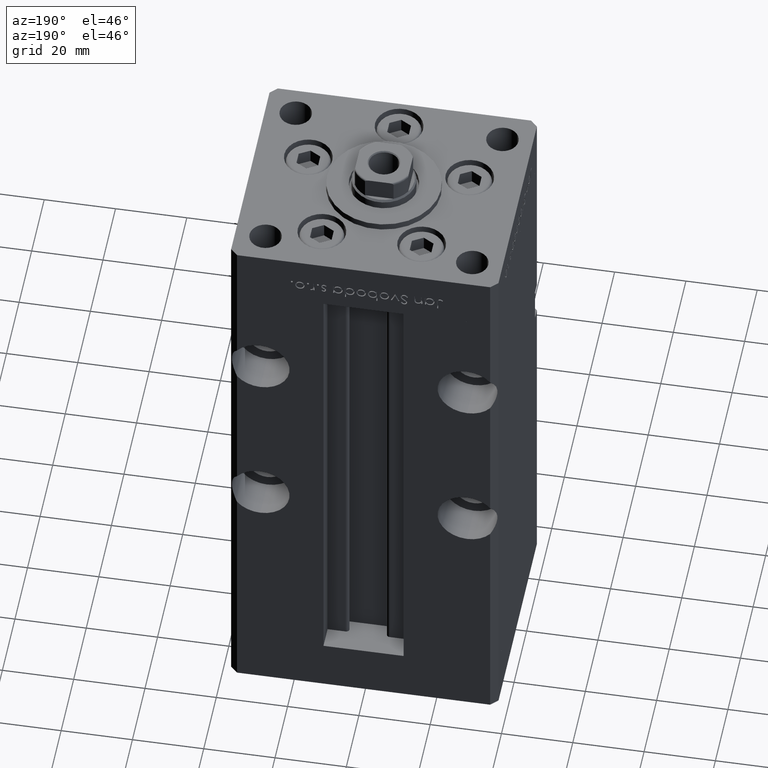
[diagram: clean part render]
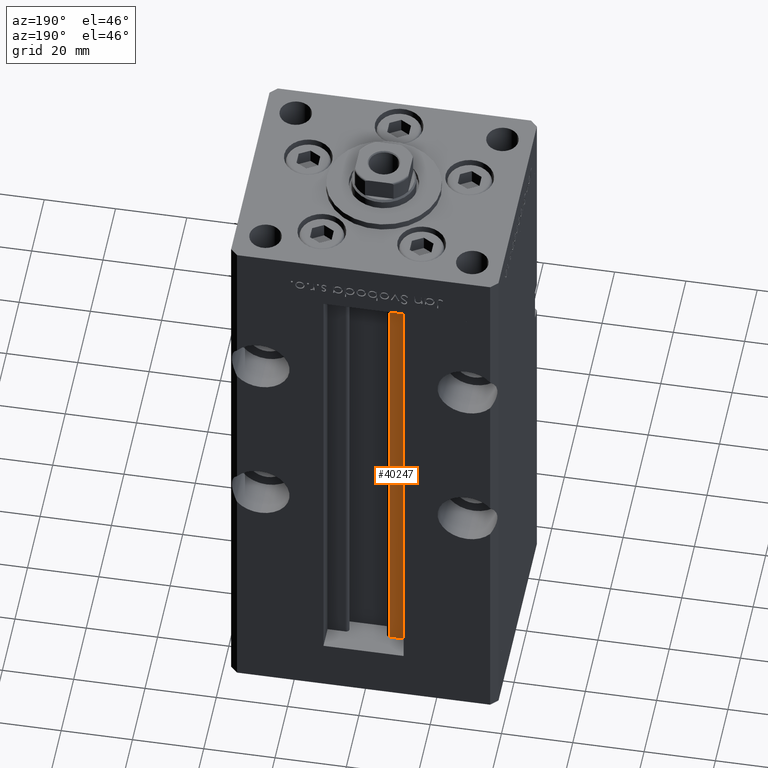
[diagram: same view with one face highlighted and labeled with its STEP entity id]
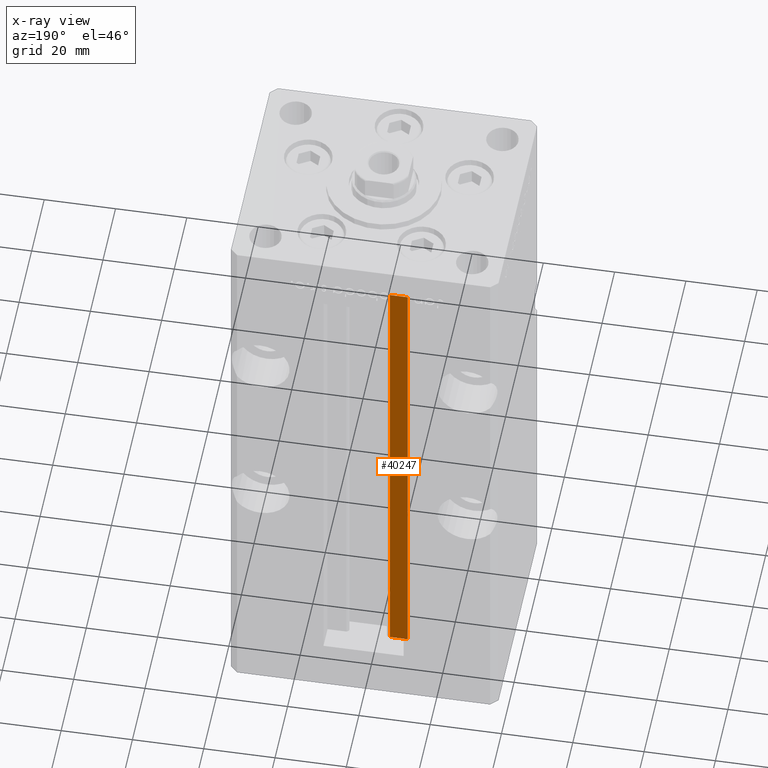
[diagram: x-ray of the same camera — body ghosted, the highlighted face saturated]
A machine part, auxiliary view. The second image highlights one B-rep face of the part: STEP entity #40247.
The next image is the same camera in x-ray: the body ghosted, the highlighted face saturated — about 0% of this face is hidden behind the body in this view.
In plain terms, the highlighted planar face has unit normal (0, -1, 0).
Its self-contained STEP definition (entity closure, byte-faithful):
#383 = DIRECTION ( 'NONE',  ( -1.000000000000000000, 0.000000000000000000, 0.000000000000000000 ) ) ;
#2689 = ORIENTED_EDGE ( 'NONE', *, *, #3500, .F. ) ;
#3500 = EDGE_CURVE ( 'NONE', #34738, #8712, #48272, .T. ) ;
#4570 = VECTOR ( 'NONE', #26720, 1000.000000000000000 ) ;
#4840 = EDGE_LOOP ( 'NONE', ( #2689, #41404, #18298, #24057 ) ) ;
#8712 = VERTEX_POINT ( 'NONE', #40013 ) ;
#10161 = DIRECTION ( 'NONE',  ( -0.000000000000000000, -0.000000000000000000, 1.000000000000000000 ) ) ;
#15075 = VECTOR ( 'NONE', #10161, 1000.000000000000000 ) ;
#15653 = DIRECTION ( 'NONE',  ( 0.000000000000000000, 0.000000000000000000, -1.000000000000000000 ) ) ;
#17703 = LINE ( 'NONE', #18243, #15075 ) ;
#18243 = CARTESIAN_POINT ( 'NONE',  ( -11.24999999999998046, 26.00000000000000000, 0.000000000000000000 ) ) ;
#18298 = ORIENTED_EDGE ( 'NONE', *, *, #31558, .T. ) ;
#19311 = VERTEX_POINT ( 'NONE', #49463 ) ;
#23559 = CARTESIAN_POINT ( 'NONE',  ( -11.24999999999998046, 26.00000000000000000, 0.000000000000000000 ) ) ;
#23806 = EDGE_CURVE ( 'NONE', #49701, #34738, #42323, .T. ) ;
#24057 = ORIENTED_EDGE ( 'NONE', *, *, #24914, .F. ) ;
#24914 = EDGE_CURVE ( 'NONE', #8712, #19311, #36937, .T. ) ;
#26308 = CARTESIAN_POINT ( 'NONE',  ( -6.183333333333980164, 26.00000000000000000, 0.000000000000000000 ) ) ;
#26720 = DIRECTION ( 'NONE',  ( 1.000000000000000000, -0.000000000000000000, -0.000000000000000000 ) ) ;
#27361 = VECTOR ( 'NONE', #31861, 1000.000000000000000 ) ;
#28532 = CARTESIAN_POINT ( 'NONE',  ( -6.183333333333980164, 26.00000000000000000, 0.000000000000000000 ) ) ;
#29952 = CARTESIAN_POINT ( 'NONE',  ( -6.183333333333980164, 26.00000000000000000, 0.000000000000000000 ) ) ;
#31558 = EDGE_CURVE ( 'NONE', #49701, #19311, #17703, .T. ) ;
#31861 = DIRECTION ( 'NONE',  ( -0.000000000000000000, -0.000000000000000000, 1.000000000000000000 ) ) ;
#32575 = DIRECTION ( 'NONE',  ( 0.000000000000000000, -1.000000000000000000, -0.000000000000000000 ) ) ;
#34738 = VERTEX_POINT ( 'NONE', #26308 ) ;
#36937 = LINE ( 'NONE', #45521, #44096 ) ;
#40013 = CARTESIAN_POINT ( 'NONE',  ( -6.183333333333980164, 26.00000000000000000, 136.0000000000000000 ) ) ;
#40191 = AXIS2_PLACEMENT_3D ( 'NONE', #28532, #32575, #15653 ) ;
#40247 = ADVANCED_FACE ( 'NONE', ( #47893 ), #48173, .F. ) ;
#41404 = ORIENTED_EDGE ( 'NONE', *, *, #23806, .F. ) ;
#42323 = LINE ( 'NONE', #29952, #4570 ) ;
#44096 = VECTOR ( 'NONE', #383, 1000.000000000000000 ) ;
#45521 = CARTESIAN_POINT ( 'NONE',  ( 0.000000000000000000, 26.00000000000000000, 136.0000000000000000 ) ) ;
#47893 = FACE_OUTER_BOUND ( 'NONE', #4840, .T. ) ;
#48173 = PLANE ( 'NONE',  #40191 ) ;
#48272 = LINE ( 'NONE', #52589, #27361 ) ;
#49463 = CARTESIAN_POINT ( 'NONE',  ( -11.24999999999998046, 26.00000000000000000, 136.0000000000000000 ) ) ;
#49701 = VERTEX_POINT ( 'NONE', #23559 ) ;
#52589 = CARTESIAN_POINT ( 'NONE',  ( -6.183333333333980164, 26.00000000000000000, 0.000000000000000000 ) ) ;